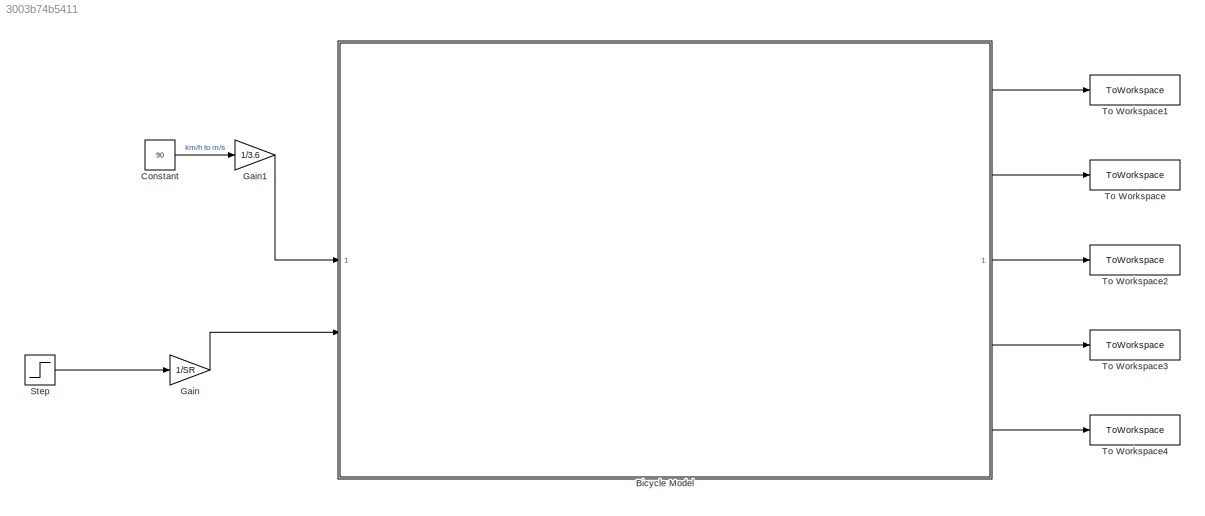
MODEL slx_3003b74b5411
KIND model
CONFIG AbsTol = auto
CONFIG EnableMultiTasking = off
CONFIG FixedStep = 0.01
CONFIG MaxStep = auto
CONFIG MinStep = auto
CONFIG RelTol = 1e-3
CONFIG SampleTimeConstraint = Unconstrained
CONFIG SolverName = FixedStepAuto
CONFIG StartTime = 0.0
CONFIG StopTime = 10.0
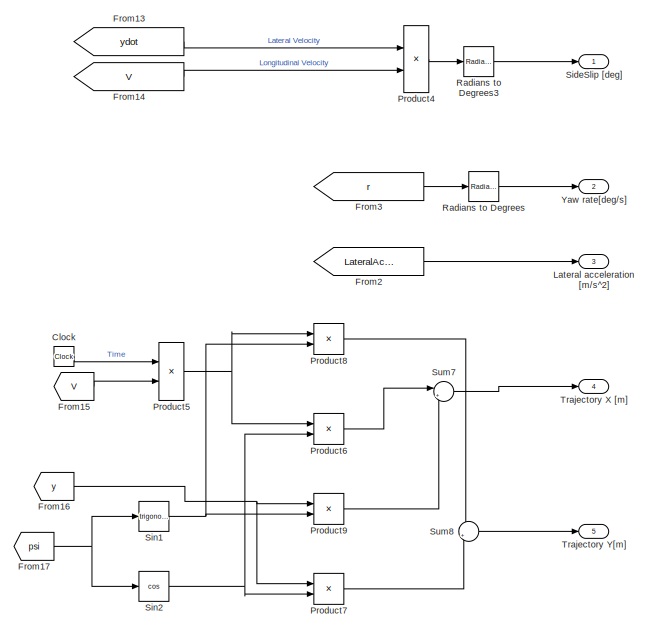
[diagram: Bicycle Model  - part 1/6, top right region]
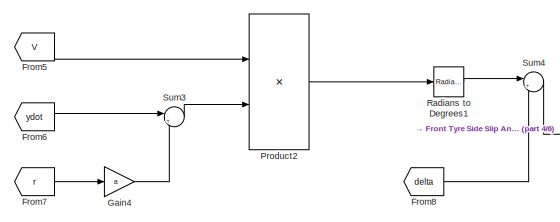
[diagram: Bicycle Model  - part 2/6, top left region]
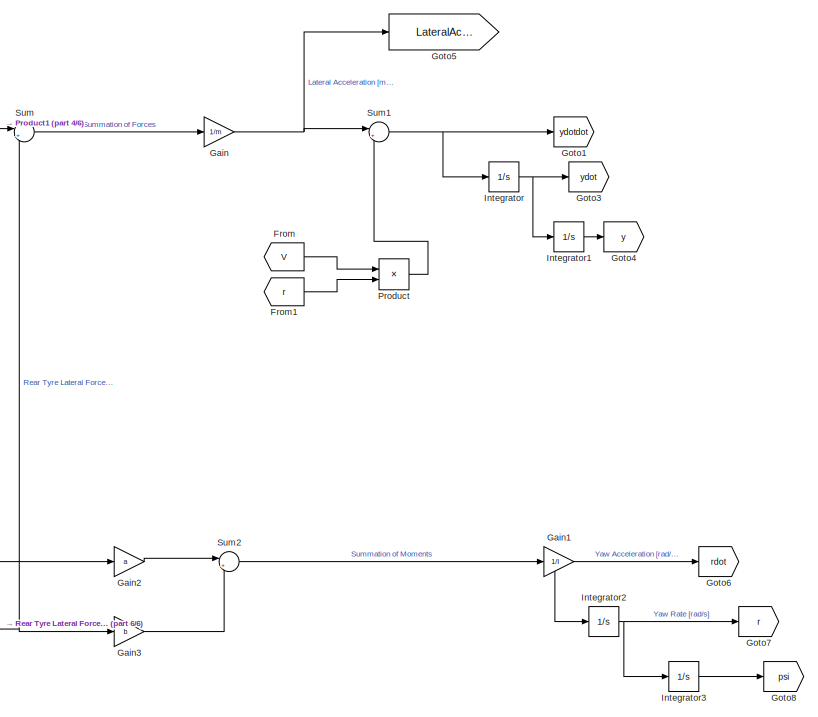
[diagram: Bicycle Model  - part 3/6, middle right region]
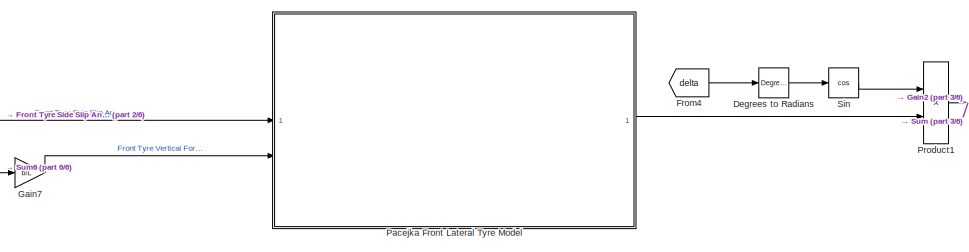
[diagram: Bicycle Model  - part 4/6, top center region]
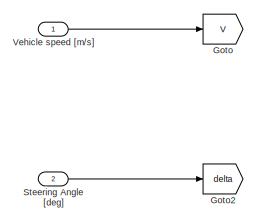
[diagram: Bicycle Model  - part 5/6, middle left region]
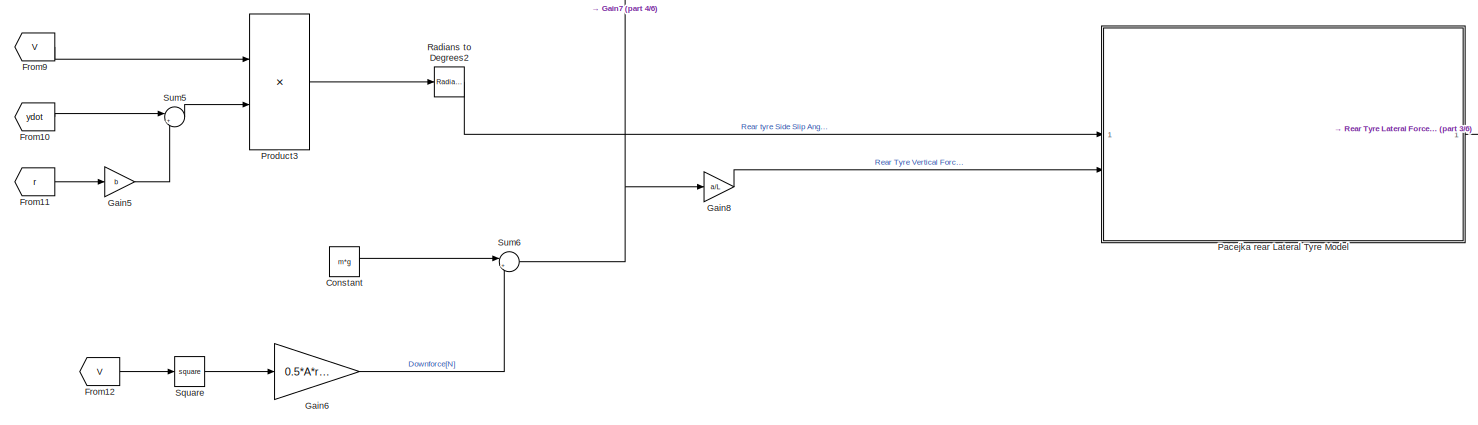
[diagram: Bicycle Model  - part 6/6, bottom left region]
BLOCK [SubSystem] Bicycle Model 
BLOCK [Clock] Bicycle Model /Clock
BLOCK [Constant] Bicycle Model /Constant
  Value = m*g
BLOCK [Reference] Bicycle Model /Degrees to Radians  REF=simulink_extras/Transformations/Degrees to
Radians
  SourceBlock = simulink_extras/Transformations/Degrees to\nRadians
  SourceType = DegreesToRadians
BLOCK [From] Bicycle Model /From
  GotoTag = V
BLOCK [From] Bicycle Model /From1
  GotoTag = r
BLOCK [From] Bicycle Model /From10
  GotoTag = ydot
BLOCK [From] Bicycle Model /From11
  GotoTag = r
BLOCK [From] Bicycle Model /From12
  GotoTag = V
BLOCK [From] Bicycle Model /From13
  GotoTag = ydot
BLOCK [From] Bicycle Model /From14
  GotoTag = V
BLOCK [From] Bicycle Model /From15
  GotoTag = V
BLOCK [From] Bicycle Model /From16
  GotoTag = y
BLOCK [From] Bicycle Model /From17
  GotoTag = psi
BLOCK [From] Bicycle Model /From2
  GotoTag = LateralAcceleration
BLOCK [From] Bicycle Model /From3
  GotoTag = r
BLOCK [From] Bicycle Model /From4
  GotoTag = delta
BLOCK [From] Bicycle Model /From5
  GotoTag = V
BLOCK [From] Bicycle Model /From6
  GotoTag = ydot
BLOCK [From] Bicycle Model /From7
  GotoTag = r
BLOCK [From] Bicycle Model /From8
  GotoTag = delta
BLOCK [From] Bicycle Model /From9
  GotoTag = V
BLOCK [Gain] Bicycle Model /Gain
  Gain = 1/m
BLOCK [Gain] Bicycle Model /Gain1
  Gain = 1/I
BLOCK [Gain] Bicycle Model /Gain2
  Gain = a
BLOCK [Gain] Bicycle Model /Gain3
  Gain = b
BLOCK [Gain] Bicycle Model /Gain4
  Gain = a
BLOCK [Gain] Bicycle Model /Gain5
  Gain = b
BLOCK [Gain] Bicycle Model /Gain6
  Gain = 0.5*A*rho*cz
BLOCK [Gain] Bicycle Model /Gain7
  Gain = b/L
BLOCK [Gain] Bicycle Model /Gain8
  Gain = a/L
BLOCK [Goto] Bicycle Model /Goto
  GotoTag = V
BLOCK [Goto] Bicycle Model /Goto1
  GotoTag = ydotdot
BLOCK [Goto] Bicycle Model /Goto2
  GotoTag = delta
BLOCK [Goto] Bicycle Model /Goto3
  GotoTag = ydot
BLOCK [Goto] Bicycle Model /Goto4
  GotoTag = y
BLOCK [Goto] Bicycle Model /Goto5
  GotoTag = LateralAcceleration
BLOCK [Goto] Bicycle Model /Goto6
  GotoTag = rdot
BLOCK [Goto] Bicycle Model /Goto7
  GotoTag = r
BLOCK [Goto] Bicycle Model /Goto8
  GotoTag = psi
BLOCK [Integrator] Bicycle Model /Integrator
BLOCK [Integrator] Bicycle Model /Integrator1
BLOCK [Integrator] Bicycle Model /Integrator2
BLOCK [Integrator] Bicycle Model /Integrator3
BLOCK [Outport] Bicycle Model /Lateral acceleration [m//s^2]
  Port = 3
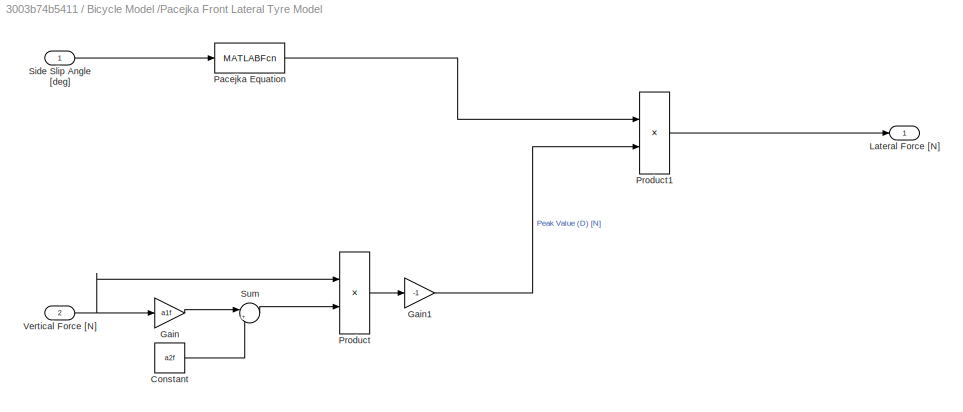
BLOCK [SubSystem] Bicycle Model /Pacejka Front Lateral Tyre Model
BLOCK [Constant] Bicycle Model /Pacejka Front Lateral Tyre Model/Constant
  Value = a2f
BLOCK [Gain] Bicycle Model /Pacejka Front Lateral Tyre Model/Gain
  Gain = a1f
BLOCK [Gain] Bicycle Model /Pacejka Front Lateral Tyre Model/Gain1
  Gain = -1
BLOCK [Outport] Bicycle Model /Pacejka Front Lateral Tyre Model/Lateral Force [N]
BLOCK [MATLABFcn] Bicycle Model /Pacejka Front Lateral Tyre Model/Pacejka Equation
  MATLABFcn = sin(Cf*atan(Bf*u-Ef*(Bf*u-atan(Bf*u))))
BLOCK [Product] Bicycle Model /Pacejka Front Lateral Tyre Model/Product
BLOCK [Product] Bicycle Model /Pacejka Front Lateral Tyre Model/Product1
BLOCK [Inport] Bicycle Model /Pacejka Front Lateral Tyre Model/Side Slip Angle [deg]
BLOCK [Sum] Bicycle Model /Pacejka Front Lateral Tyre Model/Sum
  Inputs = |++
BLOCK [Inport] Bicycle Model /Pacejka Front Lateral Tyre Model/Vertical Force [N]
  Port = 2
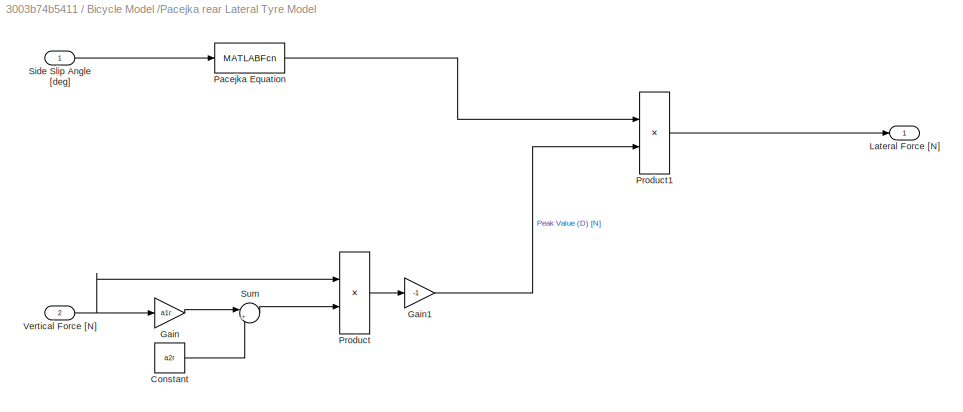
BLOCK [SubSystem] Bicycle Model /Pacejka rear Lateral Tyre Model
BLOCK [Constant] Bicycle Model /Pacejka rear Lateral Tyre Model/Constant
  Value = a2r
BLOCK [Gain] Bicycle Model /Pacejka rear Lateral Tyre Model/Gain
  Gain = a1r
BLOCK [Gain] Bicycle Model /Pacejka rear Lateral Tyre Model/Gain1
  Gain = -1
BLOCK [Outport] Bicycle Model /Pacejka rear Lateral Tyre Model/Lateral Force [N]
BLOCK [MATLABFcn] Bicycle Model /Pacejka rear Lateral Tyre Model/Pacejka Equation
  MATLABFcn = sin(Cr*atan(Br*u-Er*(Br*u-atan(Br*u))))
BLOCK [Product] Bicycle Model /Pacejka rear Lateral Tyre Model/Product
BLOCK [Product] Bicycle Model /Pacejka rear Lateral Tyre Model/Product1
BLOCK [Inport] Bicycle Model /Pacejka rear Lateral Tyre Model/Side Slip Angle [deg]
BLOCK [Sum] Bicycle Model /Pacejka rear Lateral Tyre Model/Sum
  Inputs = |++
BLOCK [Inport] Bicycle Model /Pacejka rear Lateral Tyre Model/Vertical Force [N]
  Port = 2
BLOCK [Product] Bicycle Model /Product
BLOCK [Product] Bicycle Model /Product1
BLOCK [Product] Bicycle Model /Product2
  Inputs = /*
BLOCK [Product] Bicycle Model /Product3
  Inputs = /*
BLOCK [Product] Bicycle Model /Product4
  Inputs = */
BLOCK [Product] Bicycle Model /Product5
BLOCK [Product] Bicycle Model /Product6
BLOCK [Product] Bicycle Model /Product7
BLOCK [Product] Bicycle Model /Product8
BLOCK [Product] Bicycle Model /Product9
BLOCK [Reference] Bicycle Model /Radians to Degrees  REF=simulink_extras/Transformations/Radians
to Degrees
  SourceBlock = simulink_extras/Transformations/Radians\nto Degrees
  SourceType = RadiansToDegrees
BLOCK [Reference] Bicycle Model /Radians to Degrees1  REF=simulink_extras/Transformations/Radians
to Degrees
  SourceBlock = simulink_extras/Transformations/Radians\nto Degrees
  SourceType = RadiansToDegrees
BLOCK [Reference] Bicycle Model /Radians to Degrees2  REF=simulink_extras/Transformations/Radians
to Degrees
  SourceBlock = simulink_extras/Transformations/Radians\nto Degrees
  SourceType = RadiansToDegrees
BLOCK [Reference] Bicycle Model /Radians to Degrees3  REF=simulink_extras/Transformations/Radians
to Degrees
  SourceBlock = simulink_extras/Transformations/Radians\nto Degrees
  SourceType = RadiansToDegrees
BLOCK [Outport] Bicycle Model /SideSlip [deg]
BLOCK [Trigonometry] Bicycle Model /Sin
  Operator = cos
BLOCK [Trigonometry] Bicycle Model /Sin1
BLOCK [Trigonometry] Bicycle Model /Sin2
  Operator = cos
BLOCK [Math] Bicycle Model /Square
  Operator = square
BLOCK [Inport] Bicycle Model /Steering Angle [deg]
  Port = 2
BLOCK [Sum] Bicycle Model /Sum
  Inputs = |++
BLOCK [Sum] Bicycle Model /Sum1
  Inputs = |+-
BLOCK [Sum] Bicycle Model /Sum2
  Inputs = |+-
BLOCK [Sum] Bicycle Model /Sum3
  Inputs = |++
BLOCK [Sum] Bicycle Model /Sum4
  Inputs = |+-
BLOCK [Sum] Bicycle Model /Sum5
  Inputs = |+-
BLOCK [Sum] Bicycle Model /Sum6
  Inputs = |++
BLOCK [Sum] Bicycle Model /Sum7
  Inputs = |+-
BLOCK [Sum] Bicycle Model /Sum8
  Inputs = |++
BLOCK [Outport] Bicycle Model /Trajectory X [m]
  Port = 4
BLOCK [Outport] Bicycle Model /Trajectory Y[m]
  Port = 5
BLOCK [Inport] Bicycle Model /Vehicle speed [m//s]
BLOCK [Outport] Bicycle Model /Yaw rate[deg//s]
  Port = 2
BLOCK [Constant] Constant
  Value = 90
BLOCK [Gain] Gain
  Gain = 1/SR
BLOCK [Gain] Gain1
  Gain = 1/3.6
BLOCK [Step] Step
  After = 10
  SampleTime = 0
  Time = 3
BLOCK [ToWorkspace] To Workspace
  FixptAsFi = on
  MaxDataPoints = inf
  SampleTime = -1
  SaveFormat = Timeseries
  VariableName = yawrate
BLOCK [ToWorkspace] To Workspace1
  FixptAsFi = on
  MaxDataPoints = inf
  SampleTime = -1
  VariableName = sideslip
BLOCK [ToWorkspace] To Workspace2
  FixptAsFi = on
  MaxDataPoints = inf
  SampleTime = -1
  SaveFormat = Timeseries
  VariableName = latacc
BLOCK [ToWorkspace] To Workspace3
  FixptAsFi = on
  MaxDataPoints = inf
  SampleTime = -1
  SaveFormat = Timeseries
  VariableName = X
BLOCK [ToWorkspace] To Workspace4
  FixptAsFi = on
  MaxDataPoints = inf
  SampleTime = -1
  SaveFormat = Timeseries
  VariableName = Y
LINE Bicycle Model /Clock:1 -> Bicycle Model /Product5:1
LINE Bicycle Model /Constant:1 -> Bicycle Model /Sum6:1
LINE Bicycle Model /Degrees to Radians:1 -> Bicycle Model /Sin:1
LINE Bicycle Model /From10:1 -> Bicycle Model /Sum5:1
LINE Bicycle Model /From11:1 -> Bicycle Model /Gain5:1
LINE Bicycle Model /From12:1 -> Bicycle Model /Square:1
LINE Bicycle Model /From13:1 -> Bicycle Model /Product4:1
LINE Bicycle Model /From14:1 -> Bicycle Model /Product4:2
LINE Bicycle Model /From15:1 -> Bicycle Model /Product5:2
NET Bicycle Model /From16:1 -> Bicycle Model /Product7:1, Bicycle Model /Product9:1
NET Bicycle Model /From17:1 -> Bicycle Model /Sin1:1, Bicycle Model /Sin2:1
LINE Bicycle Model /From1:1 -> Bicycle Model /Product:2
LINE Bicycle Model /From2:1 -> Bicycle Model /Lateral acceleration [m//s^2]:1
LINE Bicycle Model /From3:1 -> Bicycle Model /Radians to Degrees:1
LINE Bicycle Model /From4:1 -> Bicycle Model /Degrees to Radians:1
LINE Bicycle Model /From5:1 -> Bicycle Model /Product2:1
LINE Bicycle Model /From6:1 -> Bicycle Model /Sum3:1
LINE Bicycle Model /From7:1 -> Bicycle Model /Gain4:1
LINE Bicycle Model /From8:1 -> Bicycle Model /Sum4:2
LINE Bicycle Model /From9:1 -> Bicycle Model /Product3:1
LINE Bicycle Model /From:1 -> Bicycle Model /Product:1
NET Bicycle Model /Gain1:1 -> Bicycle Model /Goto6:1, Bicycle Model /Integrator2:1
LINE Bicycle Model /Gain2:1 -> Bicycle Model /Sum2:1
LINE Bicycle Model /Gain3:1 -> Bicycle Model /Sum2:2
LINE Bicycle Model /Gain4:1 -> Bicycle Model /Sum3:2
LINE Bicycle Model /Gain5:1 -> Bicycle Model /Sum5:2
LINE Bicycle Model /Gain6:1 -> Bicycle Model /Sum6:2
LINE Bicycle Model /Gain7:1 -> Bicycle Model /Pacejka Front Lateral Tyre Model:2
LINE Bicycle Model /Gain8:1 -> Bicycle Model /Pacejka rear Lateral Tyre Model:2
NET Bicycle Model /Gain:1 -> Bicycle Model /Goto5:1, Bicycle Model /Sum1:1
LINE Bicycle Model /Integrator1:1 -> Bicycle Model /Goto4:1
NET Bicycle Model /Integrator2:1 -> Bicycle Model /Goto7:1, Bicycle Model /Integrator3:1
LINE Bicycle Model /Integrator3:1 -> Bicycle Model /Goto8:1
NET Bicycle Model /Integrator:1 -> Bicycle Model /Goto3:1, Bicycle Model /Integrator1:1
LINE Bicycle Model /Pacejka Front Lateral Tyre Model/Constant:1 -> Bicycle Model /Pacejka Front Lateral Tyre Model/Sum:2
LINE Bicycle Model /Pacejka Front Lateral Tyre Model/Gain1:1 -> Bicycle Model /Pacejka Front Lateral Tyre Model/Product1:2
LINE Bicycle Model /Pacejka Front Lateral Tyre Model/Gain:1 -> Bicycle Model /Pacejka Front Lateral Tyre Model/Sum:1
LINE Bicycle Model /Pacejka Front Lateral Tyre Model/Pacejka Equation:1 -> Bicycle Model /Pacejka Front Lateral Tyre Model/Product1:1
LINE Bicycle Model /Pacejka Front Lateral Tyre Model/Product1:1 -> Bicycle Model /Pacejka Front Lateral Tyre Model/Lateral Force [N]:1
LINE Bicycle Model /Pacejka Front Lateral Tyre Model/Product:1 -> Bicycle Model /Pacejka Front Lateral Tyre Model/Gain1:1
LINE Bicycle Model /Pacejka Front Lateral Tyre Model/Side Slip Angle [deg]:1 -> Bicycle Model /Pacejka Front Lateral Tyre Model/Pacejka Equation:1
LINE Bicycle Model /Pacejka Front Lateral Tyre Model/Sum:1 -> Bicycle Model /Pacejka Front Lateral Tyre Model/Product:2
NET Bicycle Model /Pacejka Front Lateral Tyre Model/Vertical Force [N]:1 -> Bicycle Model /Pacejka Front Lateral Tyre Model/Gain:1, Bicycle Model /Pacejka Front Lateral Tyre Model/Product:1
LINE Bicycle Model /Pacejka Front Lateral Tyre Model:1 -> Bicycle Model /Product1:2
LINE Bicycle Model /Pacejka rear Lateral Tyre Model/Constant:1 -> Bicycle Model /Pacejka rear Lateral Tyre Model/Sum:2
LINE Bicycle Model /Pacejka rear Lateral Tyre Model/Gain1:1 -> Bicycle Model /Pacejka rear Lateral Tyre Model/Product1:2
LINE Bicycle Model /Pacejka rear Lateral Tyre Model/Gain:1 -> Bicycle Model /Pacejka rear Lateral Tyre Model/Sum:1
LINE Bicycle Model /Pacejka rear Lateral Tyre Model/Pacejka Equation:1 -> Bicycle Model /Pacejka rear Lateral Tyre Model/Product1:1
LINE Bicycle Model /Pacejka rear Lateral Tyre Model/Product1:1 -> Bicycle Model /Pacejka rear Lateral Tyre Model/Lateral Force [N]:1
LINE Bicycle Model /Pacejka rear Lateral Tyre Model/Product:1 -> Bicycle Model /Pacejka rear Lateral Tyre Model/Gain1:1
LINE Bicycle Model /Pacejka rear Lateral Tyre Model/Side Slip Angle [deg]:1 -> Bicycle Model /Pacejka rear Lateral Tyre Model/Pacejka Equation:1
LINE Bicycle Model /Pacejka rear Lateral Tyre Model/Sum:1 -> Bicycle Model /Pacejka rear Lateral Tyre Model/Product:2
NET Bicycle Model /Pacejka rear Lateral Tyre Model/Vertical Force [N]:1 -> Bicycle Model /Pacejka rear Lateral Tyre Model/Gain:1, Bicycle Model /Pacejka rear Lateral Tyre Model/Product:1
NET Bicycle Model /Pacejka rear Lateral Tyre Model:1 -> Bicycle Model /Gain3:1, Bicycle Model /Sum:2
NET Bicycle Model /Product1:1 -> Bicycle Model /Gain2:1, Bicycle Model /Sum:1
LINE Bicycle Model /Product2:1 -> Bicycle Model /Radians to Degrees1:1
LINE Bicycle Model /Product3:1 -> Bicycle Model /Radians to Degrees2:1
LINE Bicycle Model /Product4:1 -> Bicycle Model /Radians to Degrees3:1
NET Bicycle Model /Product5:1 -> Bicycle Model /Product6:1, Bicycle Model /Product8:1
LINE Bicycle Model /Product6:1 -> Bicycle Model /Sum7:1
LINE Bicycle Model /Product7:1 -> Bicycle Model /Sum8:2
LINE Bicycle Model /Product8:1 -> Bicycle Model /Sum8:1
LINE Bicycle Model /Product9:1 -> Bicycle Model /Sum7:2
LINE Bicycle Model /Product:1 -> Bicycle Model /Sum1:2
LINE Bicycle Model /Radians to Degrees1:1 -> Bicycle Model /Sum4:1
LINE Bicycle Model /Radians to Degrees2:1 -> Bicycle Model /Pacejka rear Lateral Tyre Model:1
LINE Bicycle Model /Radians to Degrees3:1 -> Bicycle Model /SideSlip [deg]:1
LINE Bicycle Model /Radians to Degrees:1 -> Bicycle Model /Yaw rate[deg//s]:1
NET Bicycle Model /Sin1:1 -> Bicycle Model /Product8:2, Bicycle Model /Product9:2
NET Bicycle Model /Sin2:1 -> Bicycle Model /Product6:2, Bicycle Model /Product7:2
LINE Bicycle Model /Sin:1 -> Bicycle Model /Product1:1
LINE Bicycle Model /Square:1 -> Bicycle Model /Gain6:1
LINE Bicycle Model /Steering Angle [deg]:1 -> Bicycle Model /Goto2:1
NET Bicycle Model /Sum1:1 -> Bicycle Model /Goto1:1, Bicycle Model /Integrator:1
LINE Bicycle Model /Sum2:1 -> Bicycle Model /Gain1:1
LINE Bicycle Model /Sum3:1 -> Bicycle Model /Product2:2
LINE Bicycle Model /Sum4:1 -> Bicycle Model /Pacejka Front Lateral Tyre Model:1
LINE Bicycle Model /Sum5:1 -> Bicycle Model /Product3:2
NET Bicycle Model /Sum6:1 -> Bicycle Model /Gain7:1, Bicycle Model /Gain8:1
LINE Bicycle Model /Sum7:1 -> Bicycle Model /Trajectory X [m]:1
LINE Bicycle Model /Sum8:1 -> Bicycle Model /Trajectory Y[m]:1
LINE Bicycle Model /Sum:1 -> Bicycle Model /Gain:1
LINE Bicycle Model /Vehicle speed [m//s]:1 -> Bicycle Model /Goto:1
LINE Bicycle Model :1 -> To Workspace1:1
LINE Bicycle Model :2 -> To Workspace:1
LINE Bicycle Model :3 -> To Workspace2:1
LINE Bicycle Model :4 -> To Workspace3:1
LINE Bicycle Model :5 -> To Workspace4:1
LINE Constant:1 -> Gain1:1
LINE Gain1:1 -> Bicycle Model :1
LINE Gain:1 -> Bicycle Model :2
LINE Step:1 -> Gain:1
note: NET lines group one-source signal fan-out (src -> all destinations, sorted); 1:1 wires keep LINE
